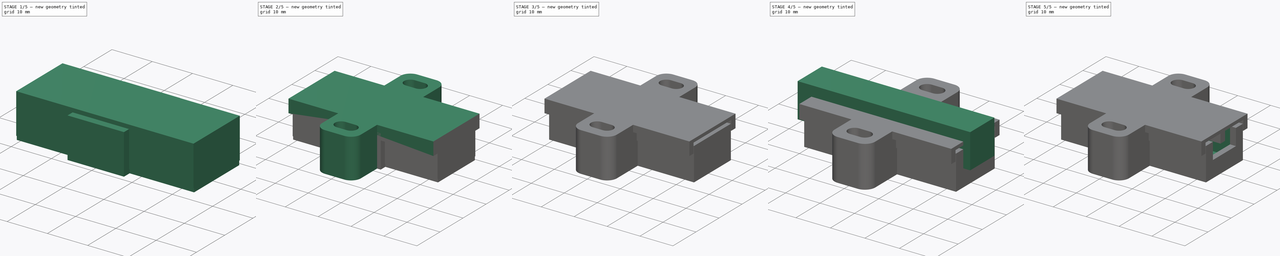
[diagram: build sequence overview — one tinted view per stage of 5, left to right]
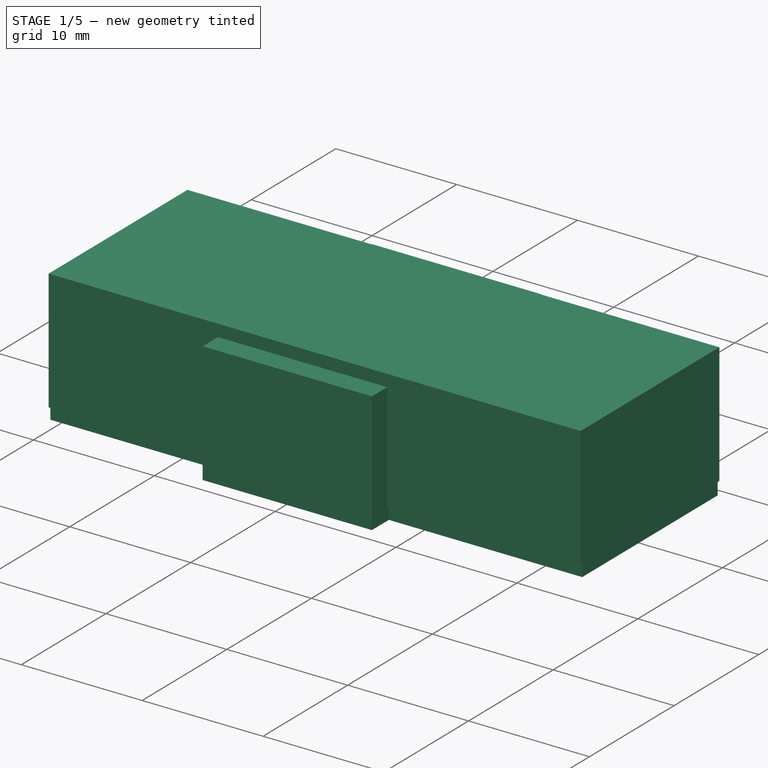
[diagram: stage 1 of 5 — iso view after this stage's code; geometry added in this stage tinted green]
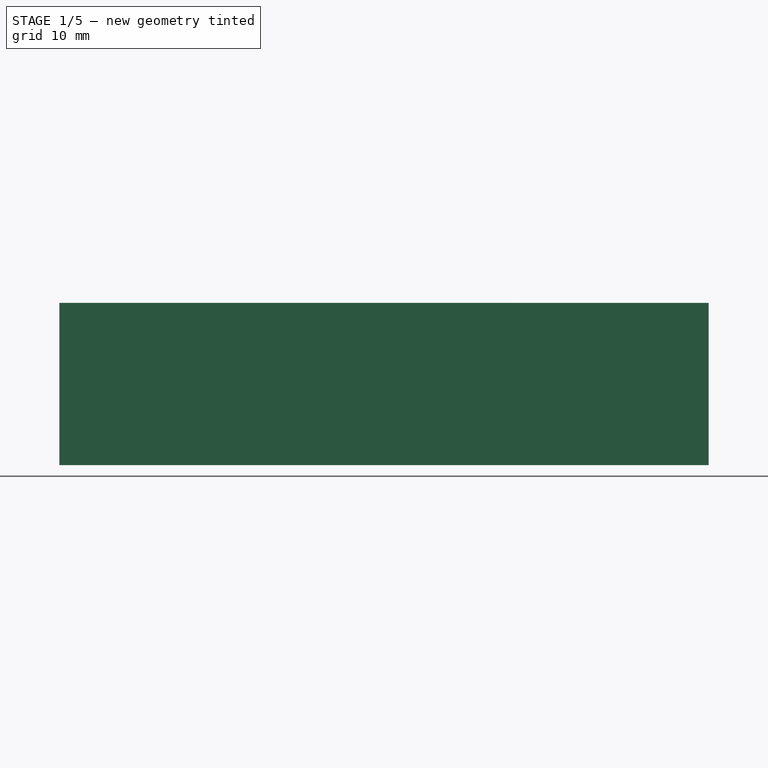
[diagram: stage 1 of 5 — front view after this stage's code; geometry added in this stage tinted green]
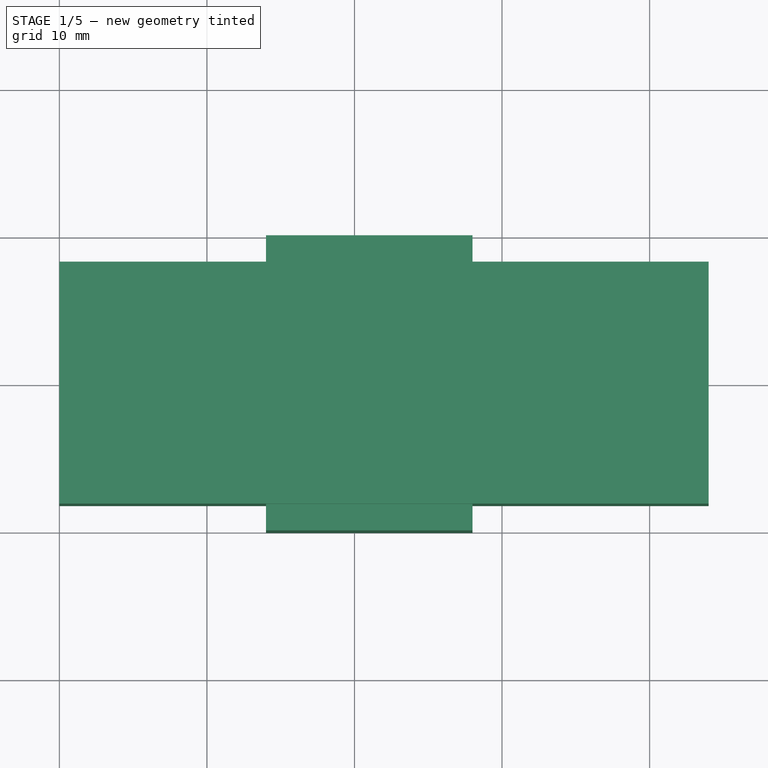
[diagram: stage 1 of 5 — top view after this stage's code; geometry added in this stage tinted green]
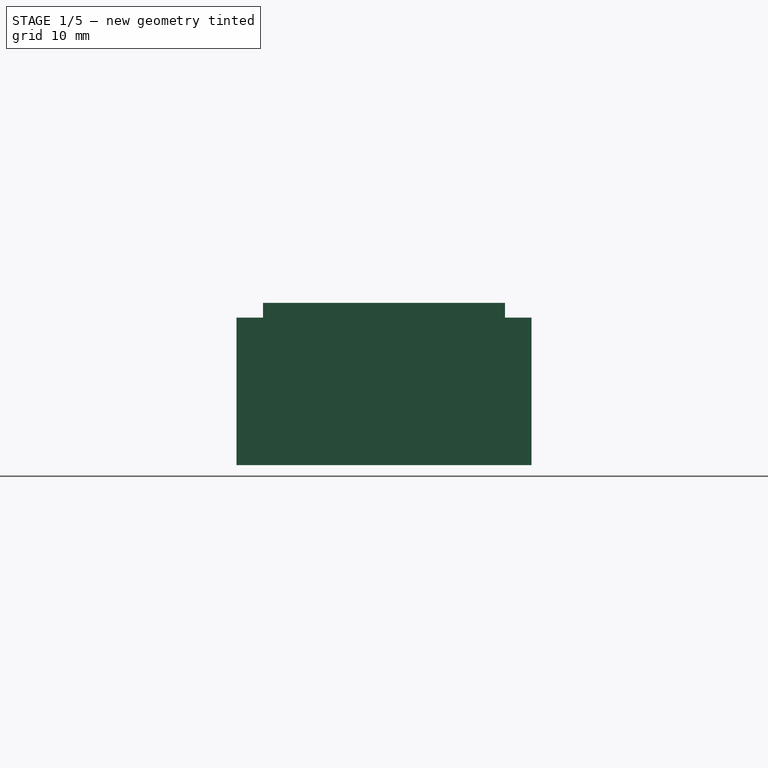
[diagram: stage 1 of 5 — right view after this stage's code; geometry added in this stage tinted green]
FCSTD DOCUMENT  (FreeCAD 0.19R)
Label: oled_091_128x32
License: All rights reserved
LicenseURL: http://en.wikipedia.org/wiki/All_rights_reserved
objects: Part::Box×7, Part::MultiFuse×6, PartDesign::Body×4, Sketcher::SketchObject×3, PartDesign::Pad×3, Part::Cut×3, Part::Feature×2, App::Part×2, PartDesign::FeatureBase×1, Part::Mirroring×1, Part::Compound×1
note: 34 computed .brp shape members not serialized (recipe doc carries the construction recipe); baked Part::Feature solids carry a one-line shape summary decoded from their .brp

FEATURE [Sketcher::SketchObject] Sketch  label="Display hole sketch"
  FullyConstrained = false
  MapMode = 5
  Support = -> [XY_Plane002]
  sketch-geometry (4):
    g0: LineSegment StartX=-10 StartY=4.5 StartZ=0 EndX=13 EndY=4.5 EndZ=0
    g1: LineSegment StartX=13 StartY=4.5 StartZ=0 EndX=13 EndY=-4.5 EndZ=0
    g2: LineSegment StartX=13 StartY=-4.5 StartZ=0 EndX=-10 EndY=-4.5 EndZ=0
    g3: LineSegment StartX=-10 StartY=-4.5 StartZ=0 EndX=-10 EndY=4.5 EndZ=0
  constraints (11):
    c: Coincident(g0,g1)
    c: Coincident(g1,g2)
    c: Coincident(g2,g3)
    c: Coincident(g3,g0)
    c: Horizontal(g0)
    c: Horizontal(g2)
    c: Vertical(g1)
    c: DistanceY(g1,g1) = 9
    c: DistanceX(g0,g0) = 23
    c: DistanceX(g-1,g1) = 13
    c: Symmetric(g0,g2,g-1)
FEATURE [Sketcher::SketchObject] Sketch001
  FullyConstrained = false
  MapMode = 5
  Support = -> [XY_Plane003]
  sketch-geometry (4):
    g0: LineSegment StartX=22.2 StartY=6.3 StartZ=0 EndX=-17.8 EndY=6.3 EndZ=0
    g1: LineSegment StartX=-17.8 StartY=6.3 StartZ=0 EndX=-17.8 EndY=-6.3 EndZ=0
    g2: LineSegment StartX=-17.8 StartY=-6.3 StartZ=0 EndX=22.2 EndY=-6.3 EndZ=0
    g3: LineSegment StartX=22.2 StartY=-6.3 StartZ=0 EndX=22.2 EndY=6.3 EndZ=0
  constraints (11):
    c: Coincident(g0,g1)
    c: Coincident(g1,g2)
    c: Coincident(g2,g3)
    c: Coincident(g3,g0)
    c: Horizontal(g0)
    c: Horizontal(g2)
    c: Vertical(g1)
    c: DistanceX(g0,g0) = 40
    c: DistanceY(g3,g3) = 12.6
    c: Symmetric(g0,g2,g-1)
    c: DistanceX(g-1,g2) = 22.2
FEATURE [Sketcher::SketchObject] Sketch002
  FullyConstrained = false
  MapMode = 5
  Support = -> [XY_Plane004]
  sketch-geometry (4):
    g0: LineSegment StartX=-12 StartY=6.25 StartZ=0 EndX=15 EndY=6.25 EndZ=0
    g1: LineSegment StartX=15 StartY=6.25 StartZ=0 EndX=15 EndY=-6.25 EndZ=0
    g2: LineSegment StartX=15 StartY=-6.25 StartZ=0 EndX=-12 EndY=-6.25 EndZ=0
    g3: LineSegment StartX=-12 StartY=-6.25 StartZ=0 EndX=-12 EndY=6.25 EndZ=0
  constraints (11):
    c: Coincident(g0,g1)
    c: Coincident(g1,g2)
    c: Coincident(g2,g3)
    c: Coincident(g3,g0)
    c: Horizontal(g0)
    c: Horizontal(g2)
    c: Vertical(g3)
    c: DistanceY(g1,g1) = 12.5
    c: Symmetric(g1,g0,g-1)
    c: DistanceX(g2,g2) = 27
    c: DistanceX(g-1,g1) = 15
FEATURE [Part::Box] Box001  label="base cube"
  AttacherType = Attacher::AttachEngine3D
  Height = 10
  Length = 44
  Placement = pos=(-20,-8,0) rot=(0,0,1;0rad)
  Width = 16
FEATURE [Part::Box] Box005  label="back base cube extract"
  AttacherType = Attacher::AttachEngine3D
  Height = 10
  Length = 44
  Placement = pos=(-20,-8.2,1) rot=(0,0,1;0rad)
  Width = 16.4
FEATURE [App::Part] Part  label="face part"
  Group = -> [Body002,Body003,Body,Cut001,Cut002,Box002,Fusion,Body001,Compound]
  Origin = -> Origin
FEATURE [Part::Box] Box  label="Cube"
  AttacherType = Attacher::AttachEngine3D
  Height = 10
  Length = 14
  Placement = pos=(-6,-10,0) rot=(0,0,1;0rad)
  Width = 20
FEATURE [Part::MultiFuse] Fusion005  label="back base extract fusion"
  Shapes = -> [Box,Box005]
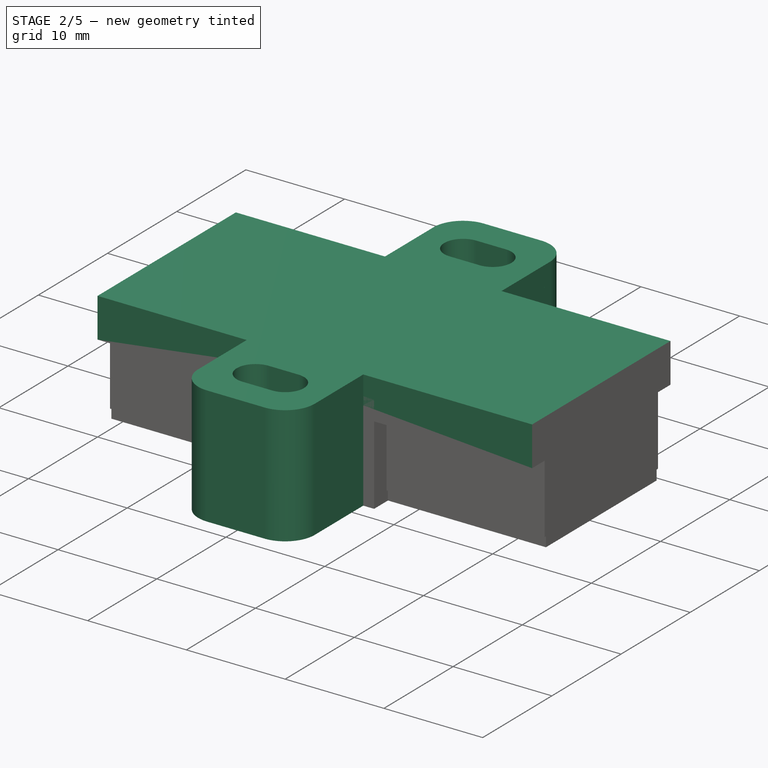
[diagram: stage 2 of 5 — iso view after this stage's code; geometry added in this stage tinted green]
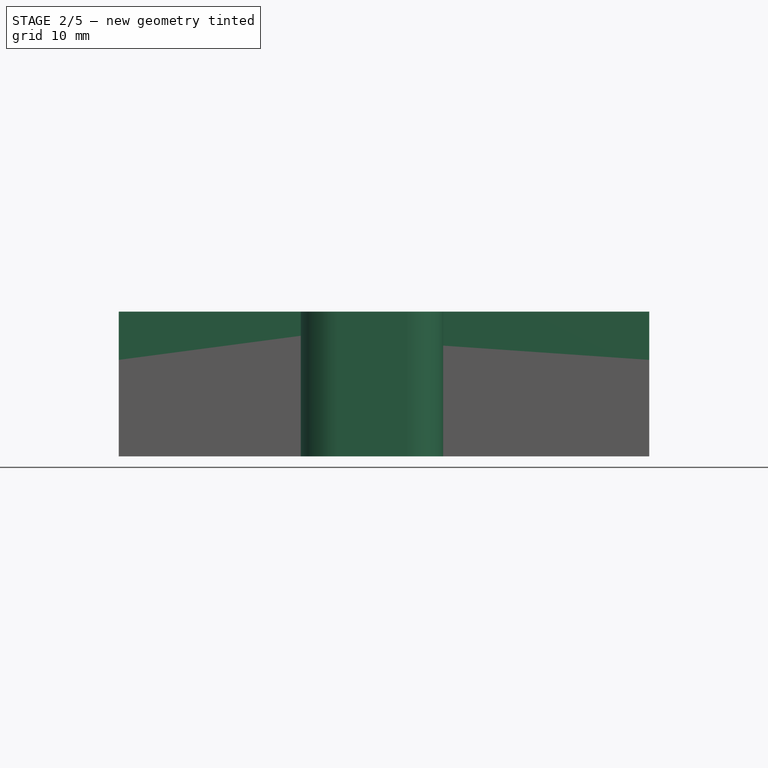
[diagram: stage 2 of 5 — front view after this stage's code; geometry added in this stage tinted green]
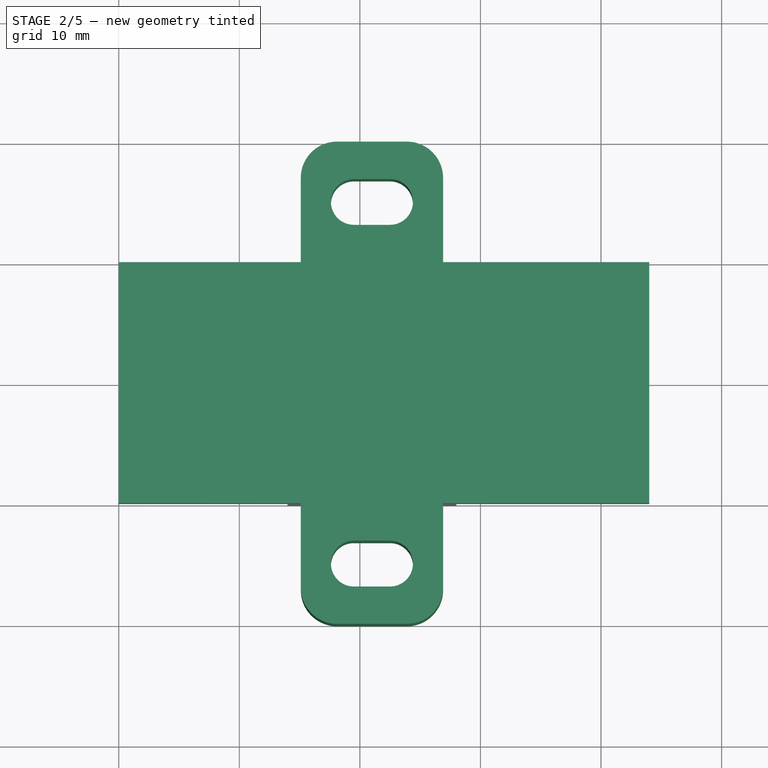
[diagram: stage 2 of 5 — top view after this stage's code; geometry added in this stage tinted green]
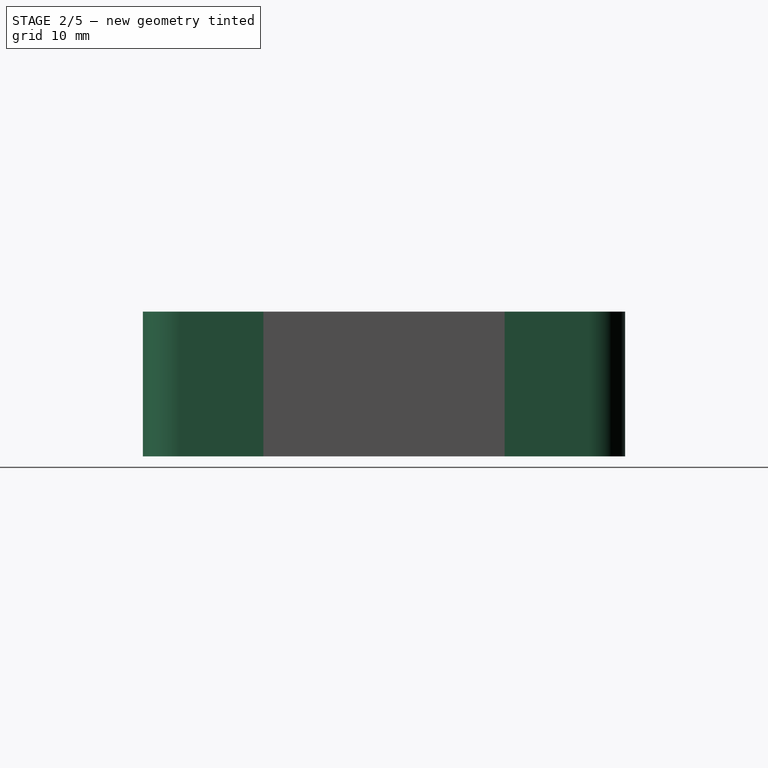
[diagram: stage 2 of 5 — right view after this stage's code; geometry added in this stage tinted green]
FEATURE [Part::Box] Box003  label="back base cube"
  AttacherType = Attacher::AttachEngine3D
  Height = 4
  Length = 44
  Placement = pos=(-20,-10,8) rot=(0,0,1;0rad)
  Width = 20
FEATURE [Part::Box] Box006  label="Cube003"
  AttacherType = Attacher::AttachEngine3D
  Height = 5
  Length = 2
  Placement = pos=(20,-6,5) rot=(0,0,1;1.5708rad)
  Width = 10
FEATURE [Part::Box] Box007  label="Cube004"
  AttacherType = Attacher::AttachEngine3D
  Height = 3
  Length = 4
  Placement = pos=(20,-6,8) rot=(0,0,1;1.5708rad)
  Width = 10
FEATURE [Part::Feature] Cut002002  label="attach plane y dir002"
  Placement = pos=(-4.9,-20,0) rot=(0,0,1;0rad)
  shape: bbox 11.8 x 40 x 10 mm, 20 faces (baked)
FEATURE [Part::Feature] Cut002001  label="attach plane y dir001"
  Placement = pos=(-4.9,-20,10) rot=(0,0,1;0rad)
  shape: bbox 11.8 x 40 x 2 mm, 20 faces (baked)
FEATURE [Part::MultiFuse] Fusion003  label="back base fusion"
  Shapes = -> [Box003,Cut002001]
FEATURE [Part::MultiFuse] Fusion004  label="face fusion"
  Shapes = -> [Box001,Cut002002]
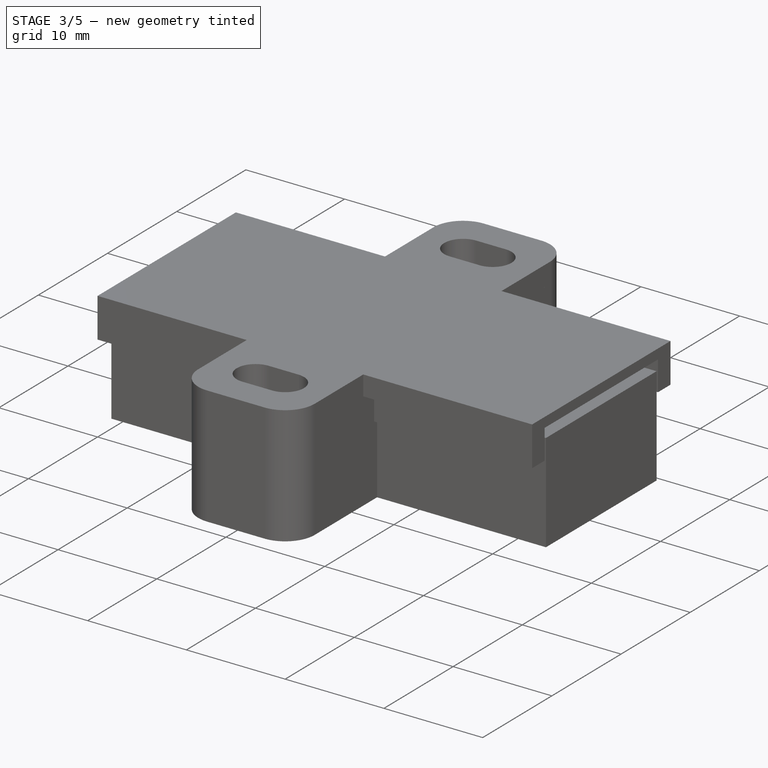
[diagram: stage 3 of 5 — iso view after this stage's code; geometry added in this stage tinted green]
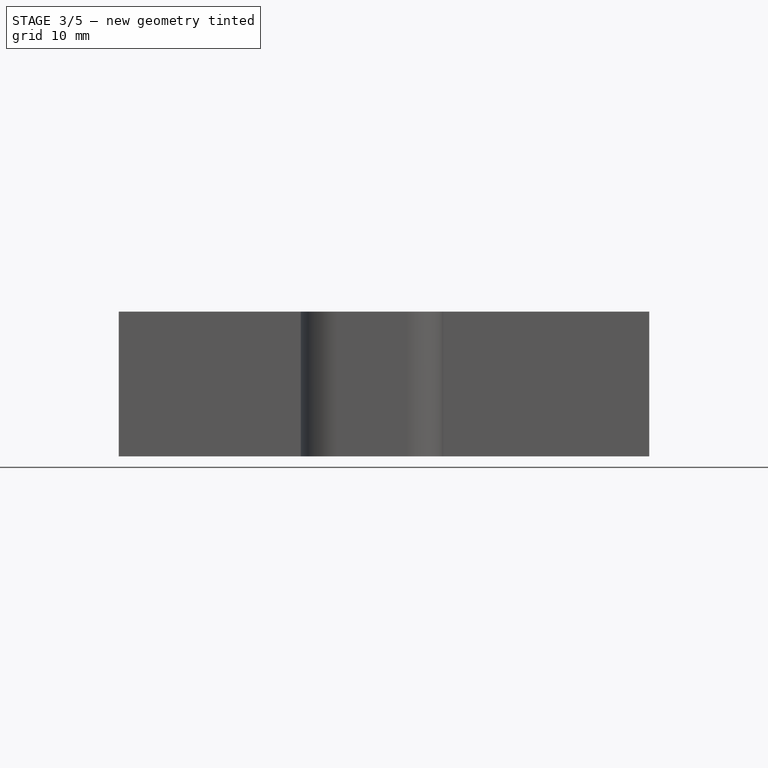
[diagram: stage 3 of 5 — front view after this stage's code; geometry added in this stage tinted green]
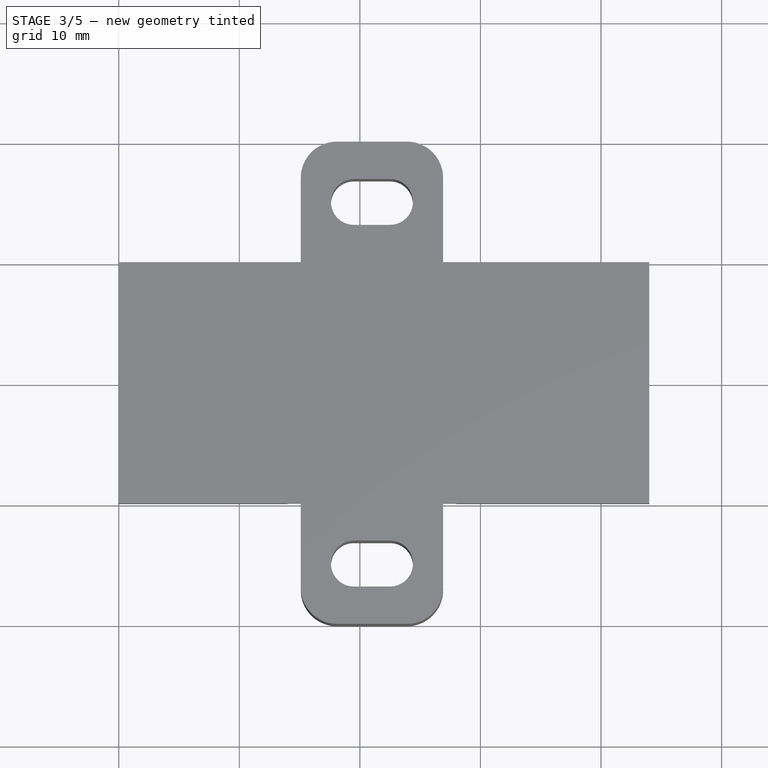
[diagram: stage 3 of 5 — top view after this stage's code; geometry added in this stage tinted green]
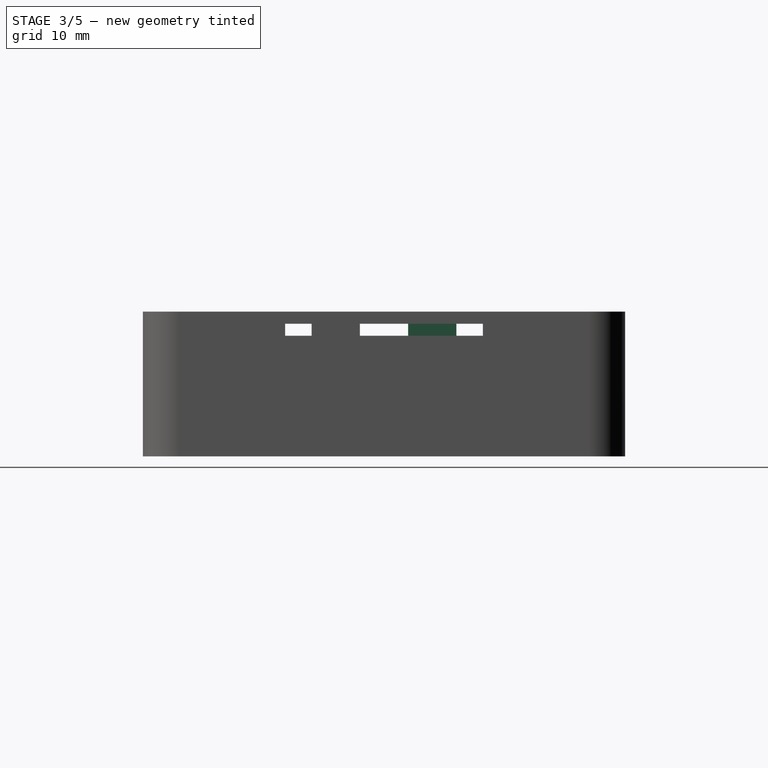
[diagram: stage 3 of 5 — right view after this stage's code; geometry added in this stage tinted green]
FEATURE [Part::MultiFuse] Fusion001
  Shapes = -> [Box007,Box006]
FEATURE [Part::Mirroring] Part__Mirroring  label="Fusion001 (Mirror #1)"
  Base = (0,0,0)
  Normal = (0,1,0)
  Source = -> Fusion001
FEATURE [Part::Cut] Cut004  label="back cut"
  Base = -> Fusion003
  Tool = -> Fusion005
FEATURE [Part::MultiFuse] Fusion002  label="back fusion"
  Shapes = -> [Cut004,Fusion001,Part__Mirroring]
FEATURE [App::Part] Part001  label="back part"
  Group = -> [Box005,Cut004,Box006,Box007,Fusion001,Part__Mirroring,Fusion002]
  Origin = -> Origin006
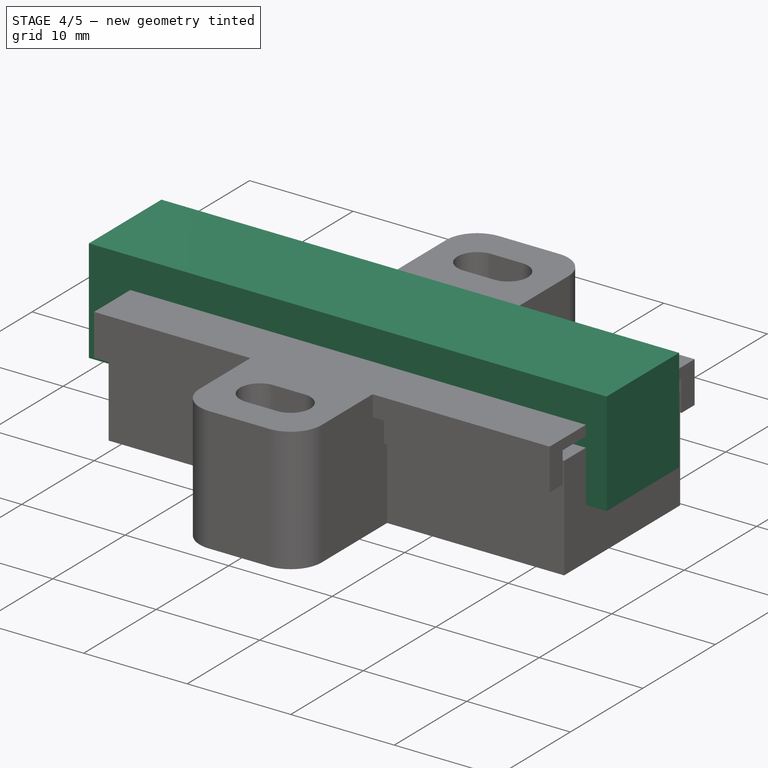
[diagram: stage 4 of 5 — iso view after this stage's code; geometry added in this stage tinted green]
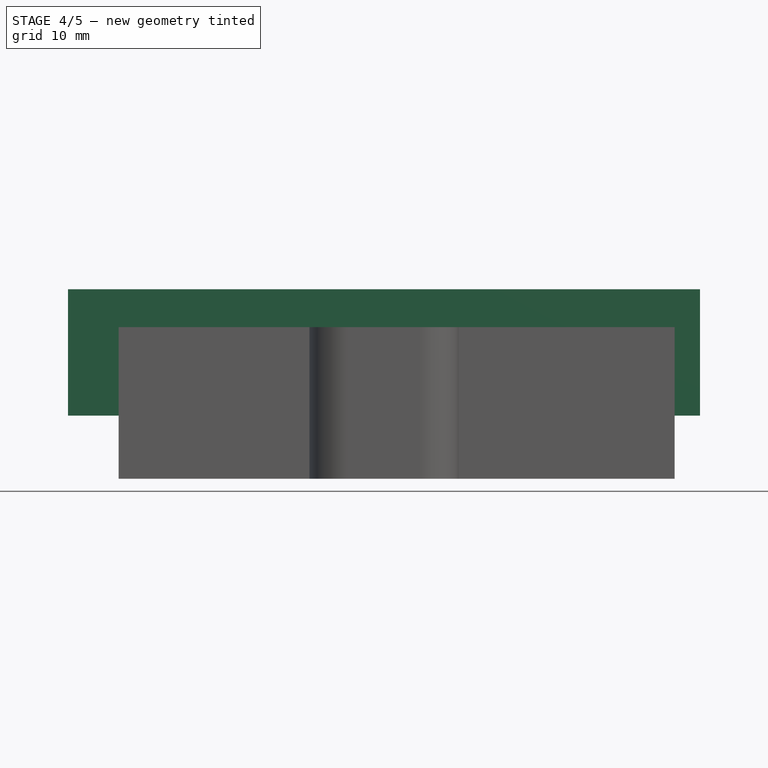
[diagram: stage 4 of 5 — front view after this stage's code; geometry added in this stage tinted green]
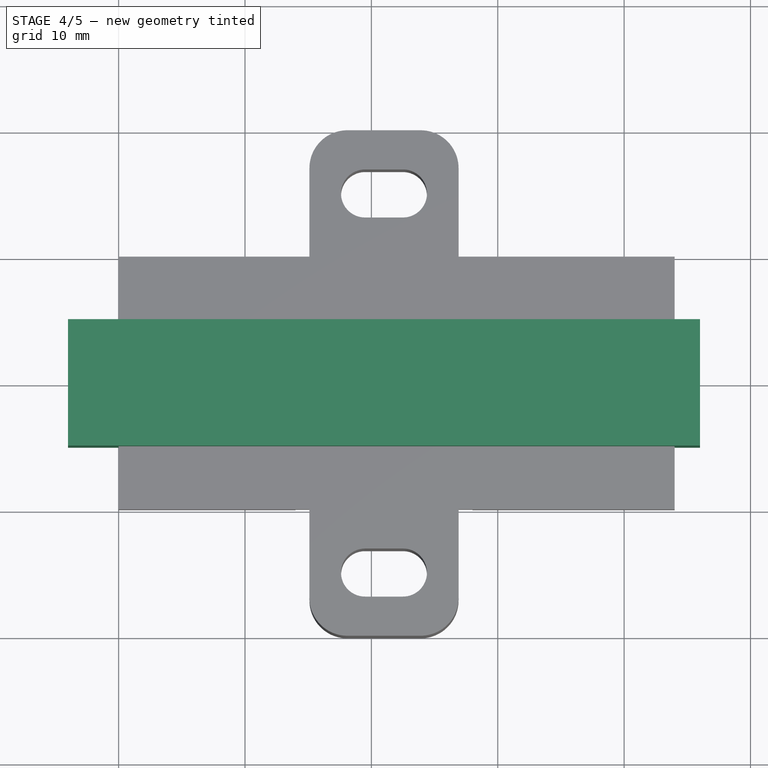
[diagram: stage 4 of 5 — top view after this stage's code; geometry added in this stage tinted green]
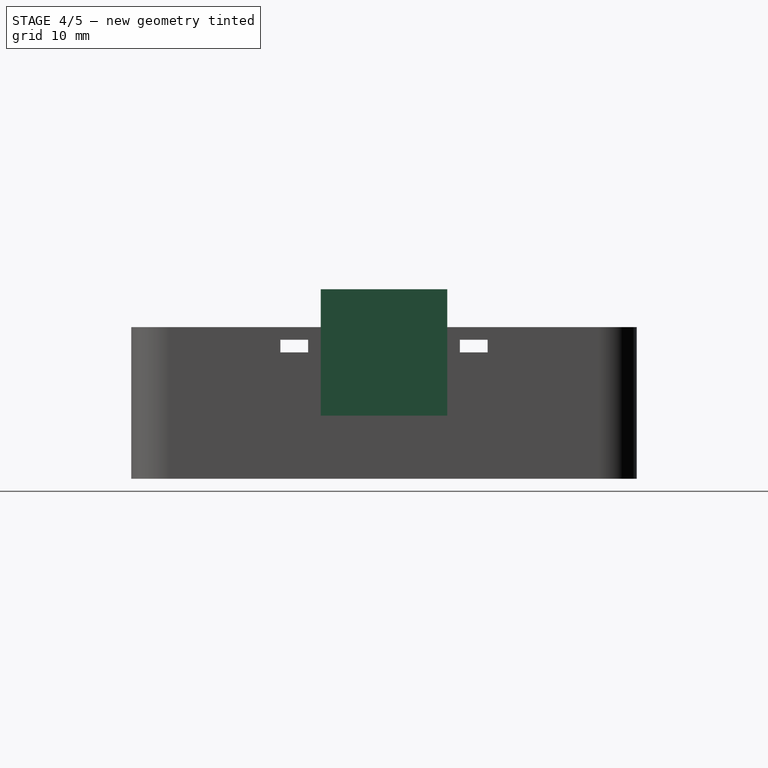
[diagram: stage 4 of 5 — right view after this stage's code; geometry added in this stage tinted green]
FEATURE [PartDesign::Pad] Pad
  AllowMultiFace = false
  Direction = (1,1,1)
  Length = 30
  Length2 = 100
  Profile = -> Sketch
  Type = 0
FEATURE [PartDesign::Body] Body001  label="body hole"
  Group = -> [Sketch001,Pad001]
  Origin = -> Origin003
  Placement = pos=(0,0,1) rot=(0,0,1;0rad)
  Tip = -> Pad001
FEATURE [PartDesign::Pad] Pad002
  AllowMultiFace = false
  Direction = (1,1,1)
  Length = 2
  Length2 = 100
  Profile = -> Sketch002
  Type = 0
FEATURE [PartDesign::Body] Body002  label="display border body"
  Group = -> [Sketch002,Pad002]
  Origin = -> Origin004
  Tip = -> Pad002
FEATURE [PartDesign::FeatureBase] Clone
  BaseFeature = -> Body
  Placement = pos=(0,0,-10) rot=(0,0,1;0rad)
FEATURE [PartDesign::Body] Body003  label="display hole clone body"
  BaseFeature = -> Body
  Group = -> [Clone]
  Origin = -> Origin005
  Tip = -> Clone
FEATURE [Part::Cut] Cut002
  Base = -> Body002
  Tool = -> Body003
FEATURE [Part::Box] Box002  label="Cube001"
  AttacherType = Attacher::AttachEngine3D
  Height = 10
  Length = 50
  Placement = pos=(-24,-5,5) rot=(0,0,1;0rad)
  Width = 10
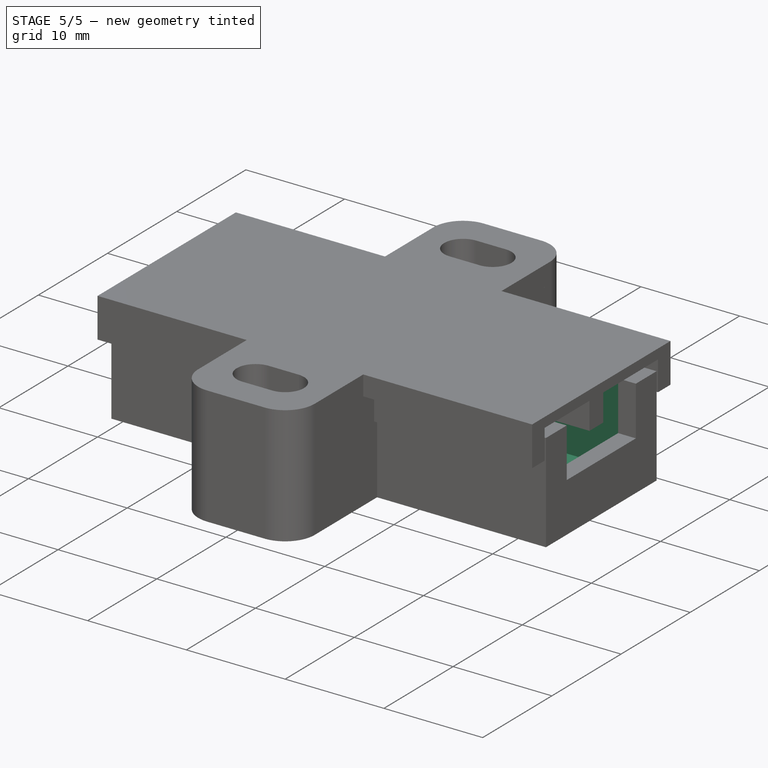
[diagram: stage 5 of 5 — iso view after this stage's code; geometry added in this stage tinted green]
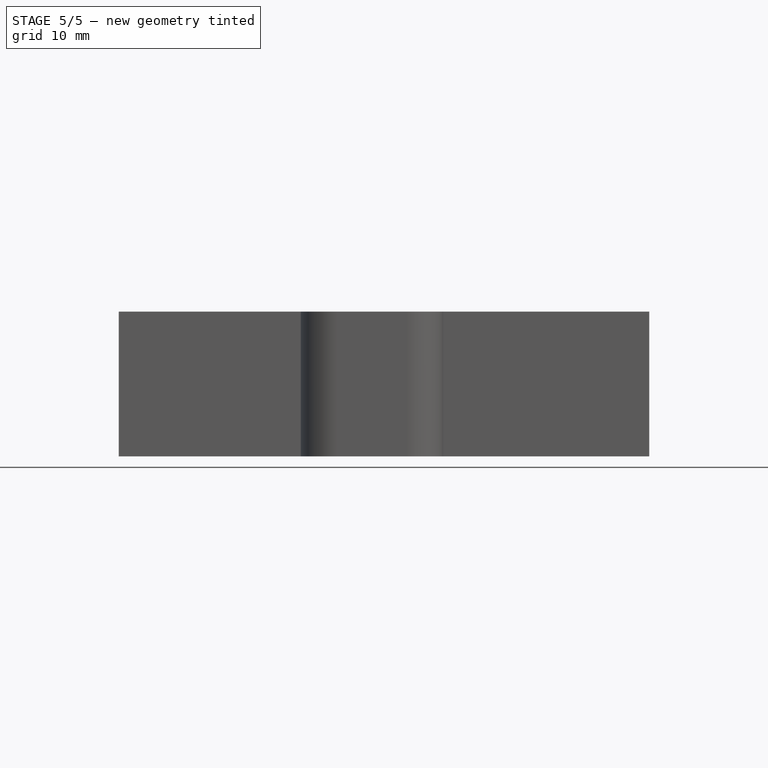
[diagram: stage 5 of 5 — front view after this stage's code; geometry added in this stage tinted green]
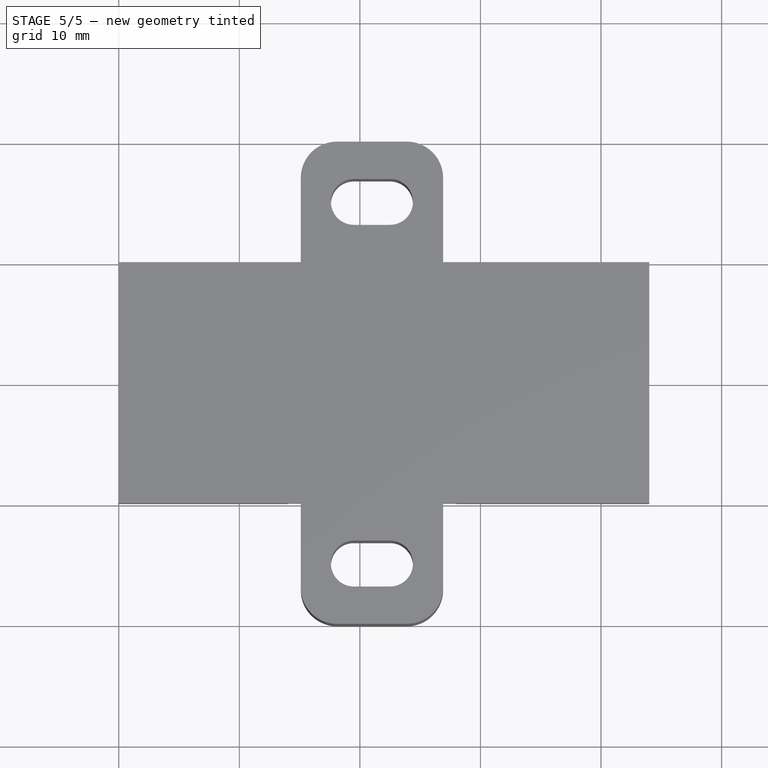
[diagram: stage 5 of 5 — top view after this stage's code; geometry added in this stage tinted green]
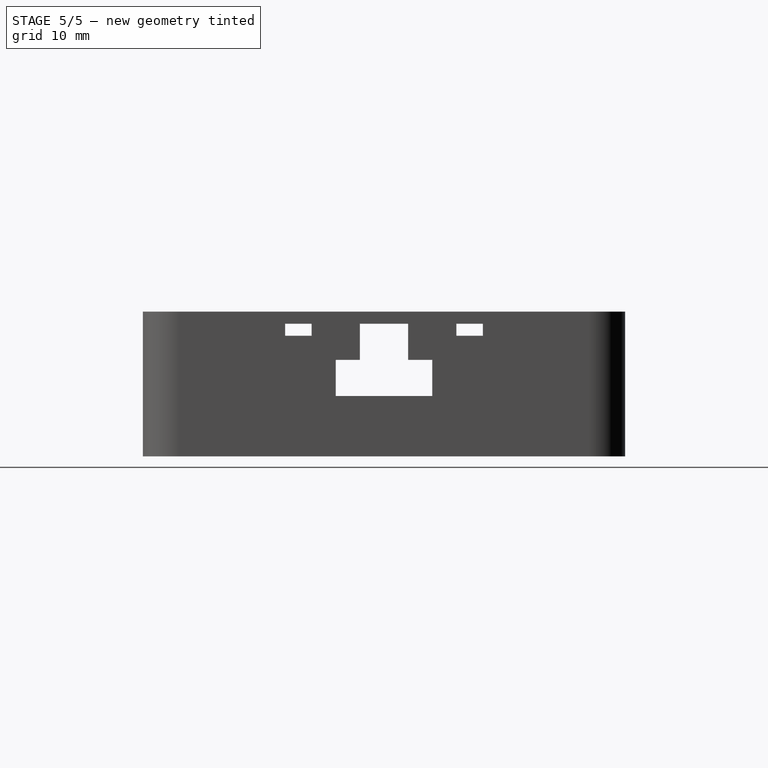
[diagram: stage 5 of 5 — right view after this stage's code; geometry added in this stage tinted green]
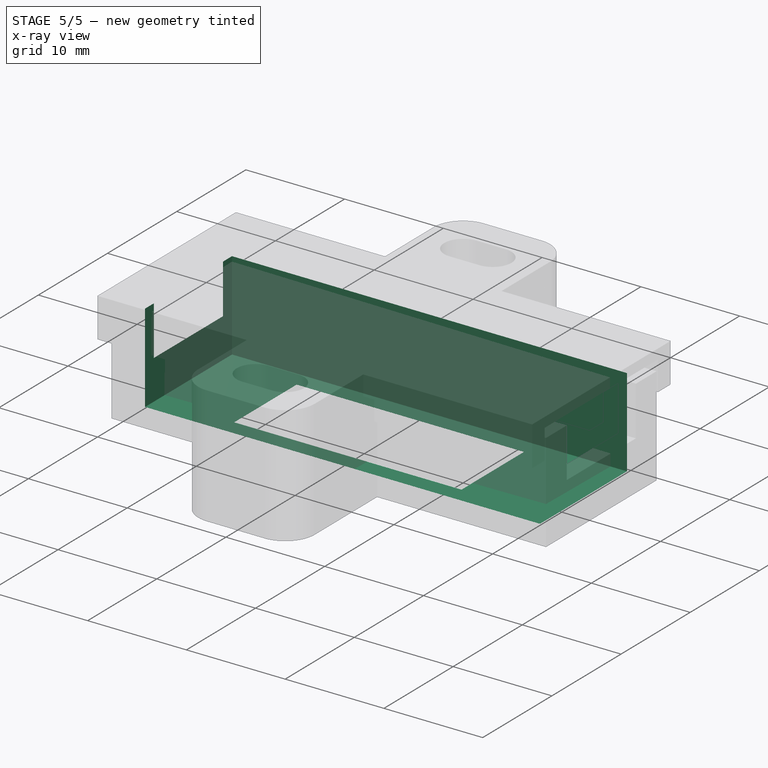
[diagram: stage 5 of 5 — x-ray composite at the iso view; earlier geometry ghosted, this stage's added geometry solid]
FEATURE [PartDesign::Body] Body  label="display hole"
  Group = -> [Sketch,Pad]
  Origin = -> Origin002
  Placement = pos=(0,0,-10) rot=(0,0,1;0rad)
  Tip = -> Pad
FEATURE [PartDesign::Pad] Pad001
  AllowMultiFace = false
  Direction = (1,1,1)
  Length = 30
  Length2 = 100
  Profile = -> Sketch001
  Type = 0
FEATURE [Part::MultiFuse] Fusion
  Shapes = -> [Body,Body001,Box002]
FEATURE [Part::Cut] Cut001
  Base = -> Fusion004
  Tool = -> Fusion
FEATURE [Part::Compound] Compound
  Links = -> [Cut002,Cut001]
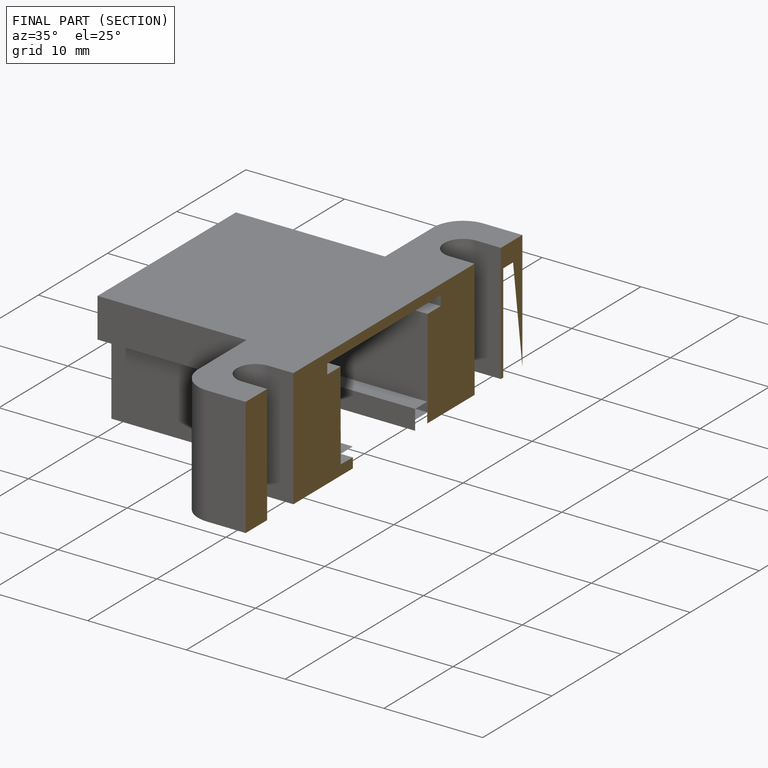
[diagram: finished part — half-section view (interior)]
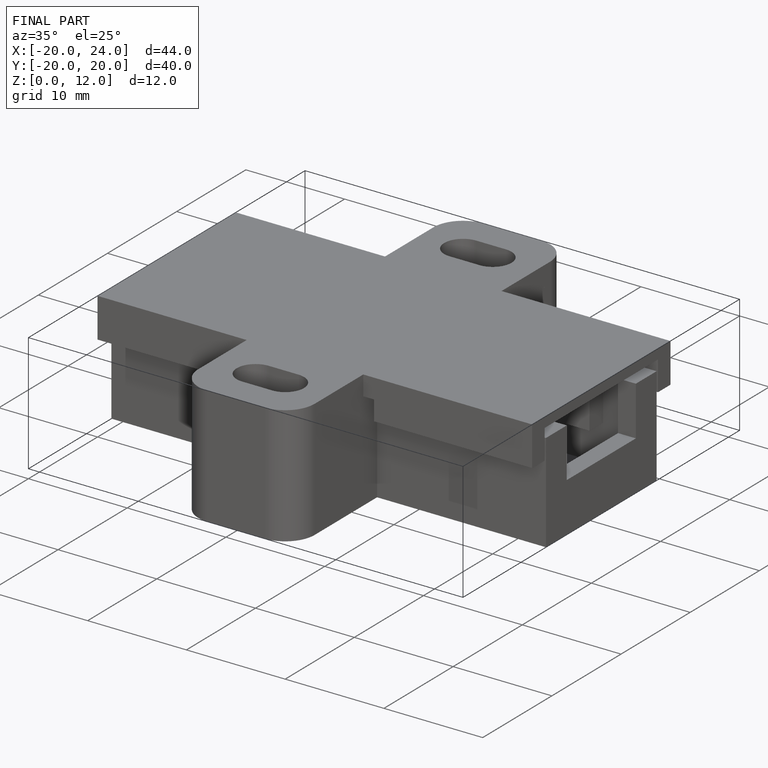
[diagram: finished part — iso view with bounding-box wireframe]
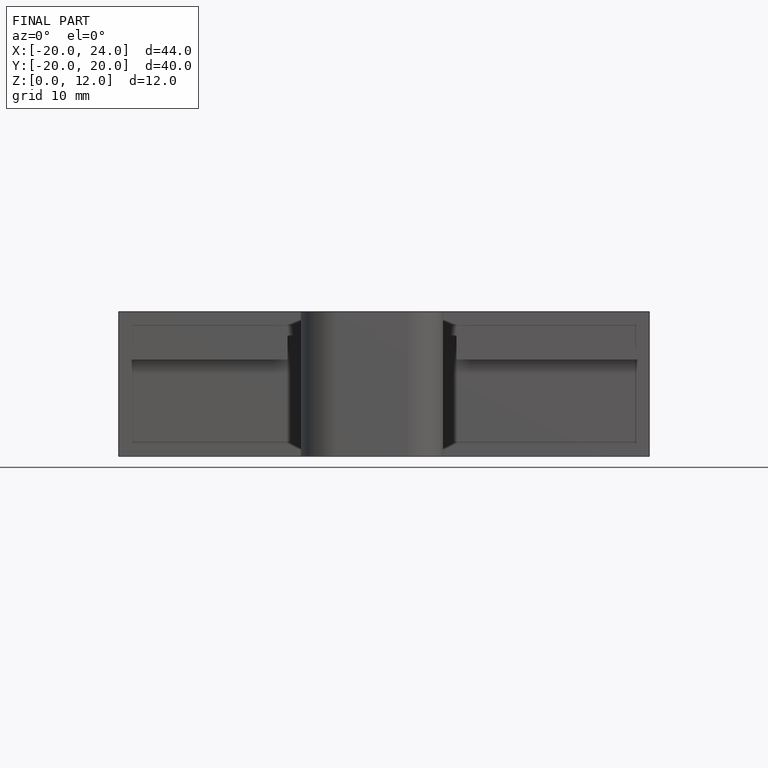
[diagram: finished part — front view with bounding-box wireframe]
